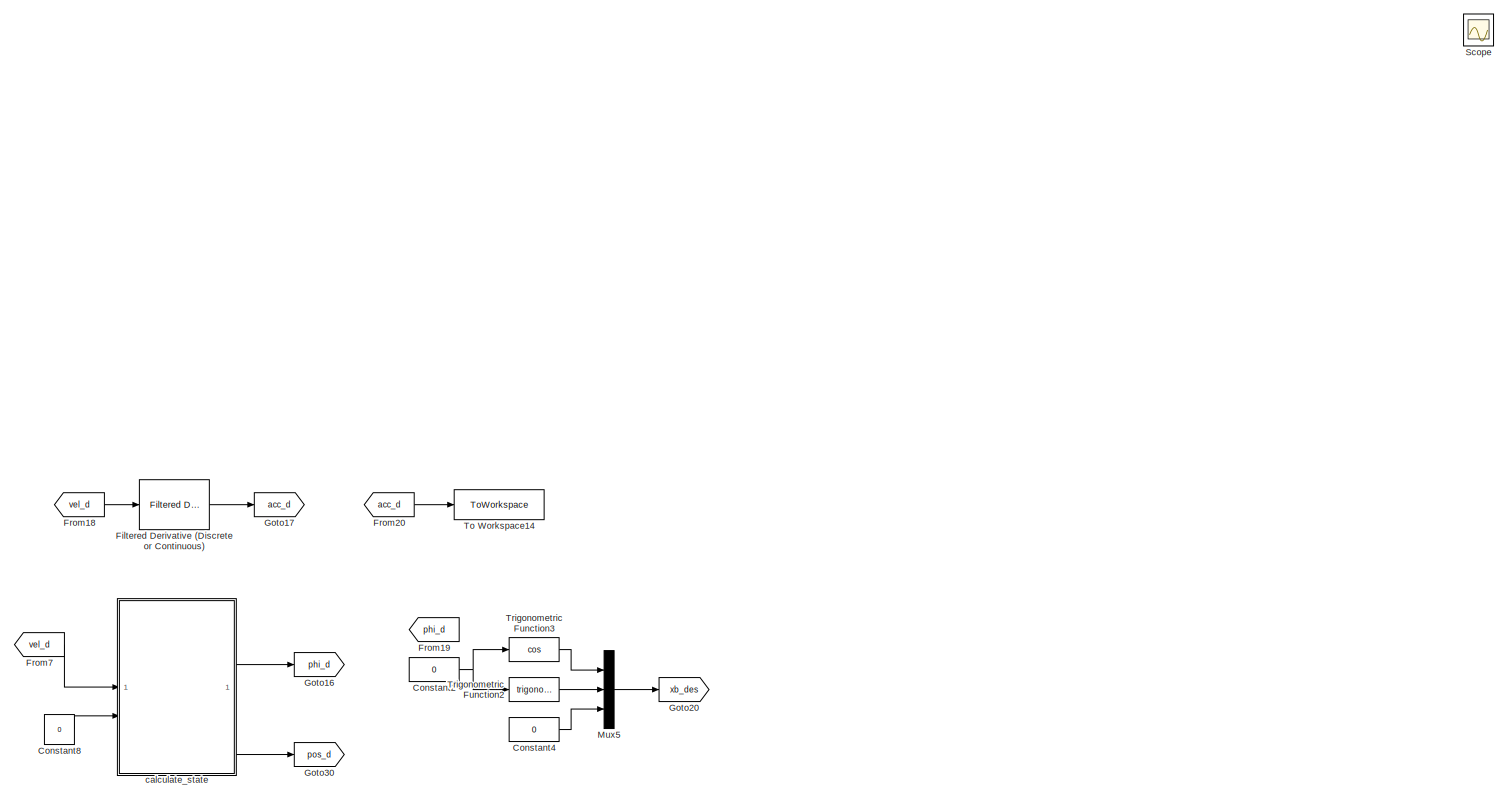
[diagram: root canvas - part 1/4, top right region]
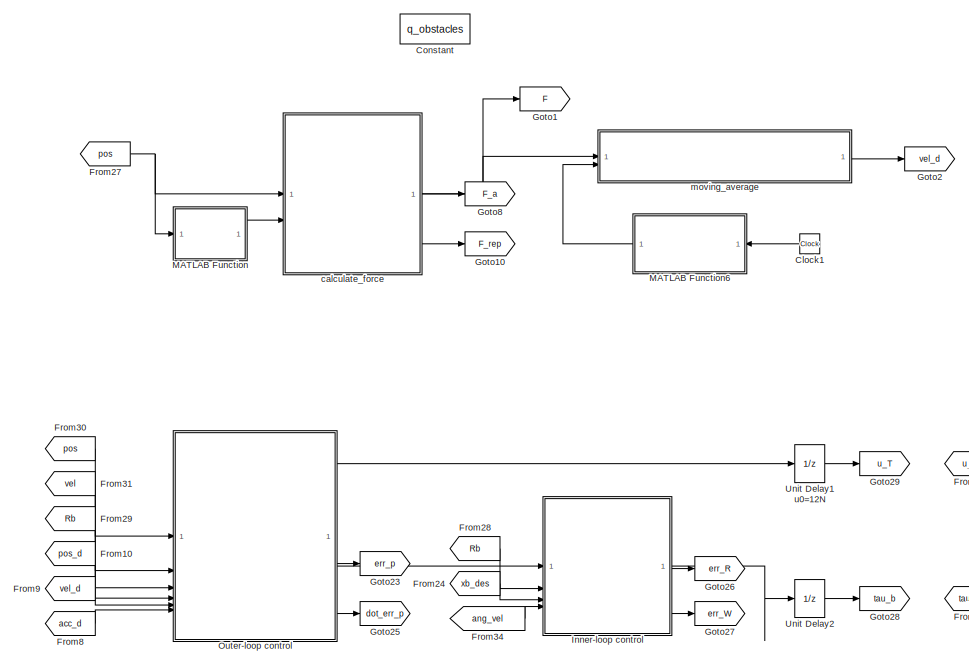
[diagram: root canvas - part 2/4, middle left region]
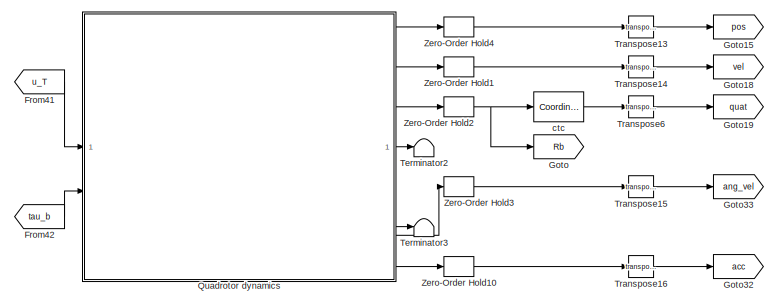
[diagram: root canvas - part 3/4, central region]
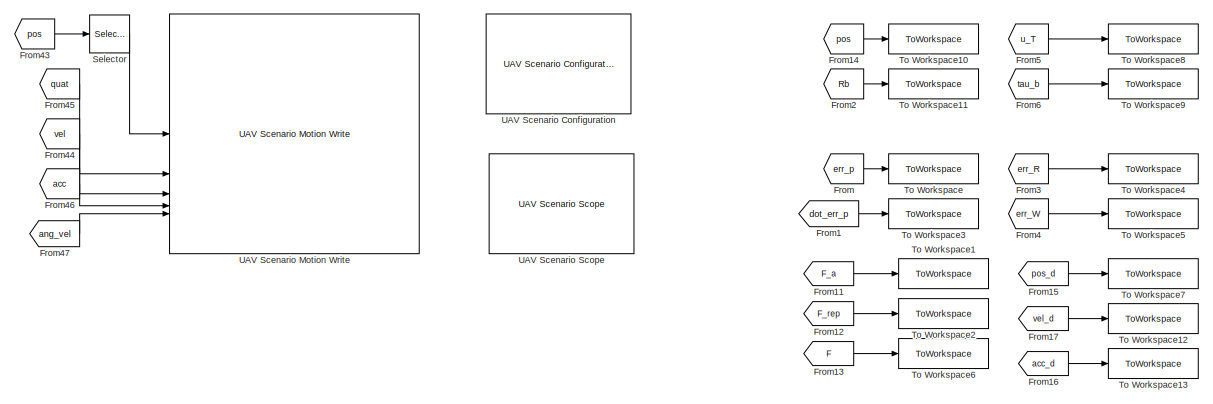
[diagram: root canvas - part 4/4, bottom left region]
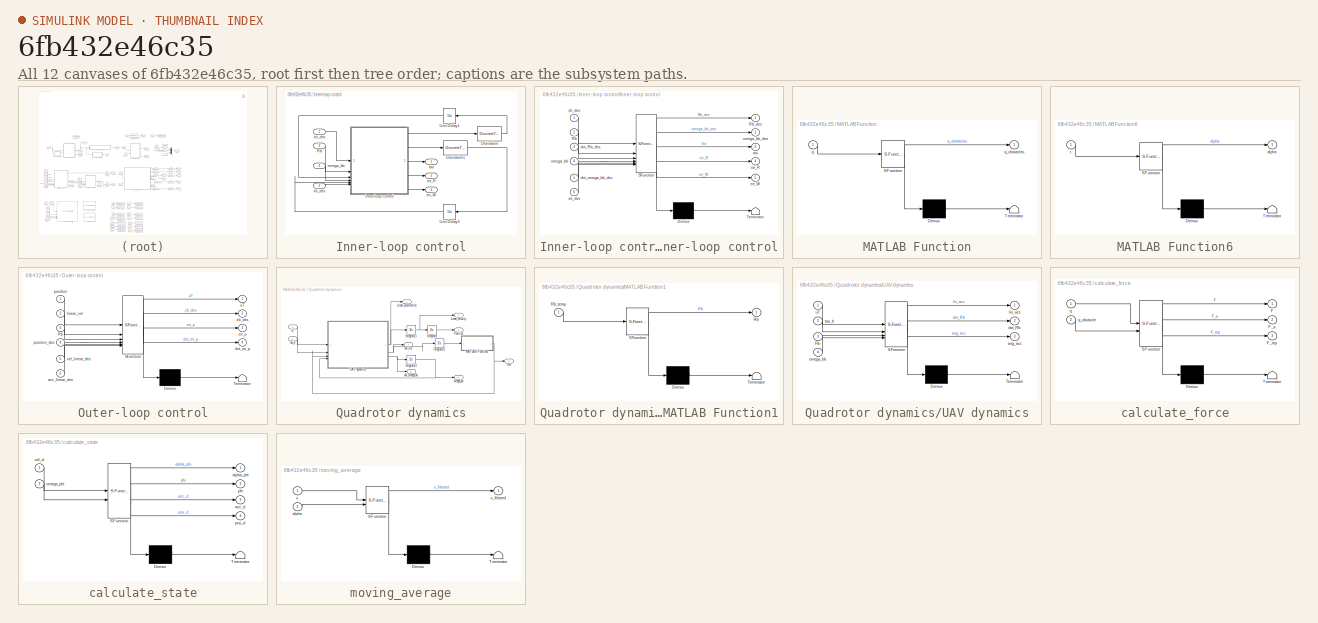
[diagram: thumbnail index - all 12 canvases of the model, root first then tree order]
MODEL slx_6fb432e46c35
KIND model
CONFIG AbsTol = auto
CONFIG EnableMultiTasking = off
CONFIG FixedStep = auto
CONFIG MaxStep = auto
CONFIG MinStep = auto
CONFIG RelTol = 1e-3
CONFIG SampleTimeConstraint = Unconstrained
CONFIG SolverName = VariableStepAuto
CONFIG StartTime = 0.0
CONFIG StopTime = 40
BLOCK [Clock] Clock1
  NameLocation = top
BLOCK [Constant] Constant
  Commented = on
  Value = q_obstacles
BLOCK [Constant] Constant2
  Value = 0
BLOCK [Constant] Constant4
  Value = 0
BLOCK [Constant] Constant8
  Value = 0
BLOCK [Reference] Filtered Derivative (Discrete or Continuous)  REF=eeGeneralControl/Filtered Derivative
(Discrete or Continuous)
  LibrarySourceBlock = ee_sl_lib/General Control/Filtered Derivative\n(Discrete or Continuous)
  SourceBlock = eeGeneralControl/Filtered Derivative\n(Discrete or Continuous)
  SourceType = Filtered Derivative (Discrete or Continuous)
BLOCK [From] From
  GotoTag = err_p
BLOCK [From] From1
  GotoTag = dot_err_p
BLOCK [From] From10
  GotoTag = pos_d
BLOCK [From] From11
  GotoTag = F_a
BLOCK [From] From12
  GotoTag = F_rep
BLOCK [From] From13
  GotoTag = F
BLOCK [From] From14
  GotoTag = pos
BLOCK [From] From15
  GotoTag = pos_d
BLOCK [From] From16
  Commented = on
  GotoTag = acc_d
BLOCK [From] From17
  GotoTag = vel_d
BLOCK [From] From18
  GotoTag = vel_d
BLOCK [From] From19
  GotoTag = phi_d
BLOCK [From] From2
  GotoTag = Rb
BLOCK [From] From20
  GotoTag = acc_d
BLOCK [From] From24
  GotoTag = xb_des
BLOCK [From] From27
  GotoTag = pos
BLOCK [From] From28
  GotoTag = Rb
BLOCK [From] From29
  GotoTag = Rb
BLOCK [From] From3
  GotoTag = err_R
BLOCK [From] From30
  GotoTag = pos
BLOCK [From] From31
  GotoTag = vel
BLOCK [From] From34
  GotoTag = ang_vel
BLOCK [From] From4
  GotoTag = err_W
BLOCK [From] From41
  GotoTag = u_T
BLOCK [From] From42
  GotoTag = tau_b
BLOCK [From] From43
  GotoTag = pos
BLOCK [From] From44
  GotoTag = vel
BLOCK [From] From45
  GotoTag = quat
BLOCK [From] From46
  GotoTag = acc
BLOCK [From] From47
  GotoTag = ang_vel
BLOCK [From] From5
  GotoTag = u_T
BLOCK [From] From6
  GotoTag = tau_b
BLOCK [From] From7
  GotoTag = vel_d
BLOCK [From] From8
  GotoTag = acc_d
BLOCK [From] From9
  GotoTag = vel_d
BLOCK [Goto] Goto
  GotoTag = Rb
BLOCK [Goto] Goto1
  GotoTag = F
BLOCK [Goto] Goto10
  GotoTag = F_rep
BLOCK [Goto] Goto15
  GotoTag = pos
BLOCK [Goto] Goto16
  GotoTag = phi_d
BLOCK [Goto] Goto17
  GotoTag = acc_d
BLOCK [Goto] Goto18
  GotoTag = vel
BLOCK [Goto] Goto19
  GotoTag = quat
BLOCK [Goto] Goto2
  GotoTag = vel_d
BLOCK [Goto] Goto20
  GotoTag = xb_des
BLOCK [Goto] Goto23
  GotoTag = err_p
BLOCK [Goto] Goto25
  GotoTag = dot_err_p
BLOCK [Goto] Goto26
  GotoTag = err_R
BLOCK [Goto] Goto27
  GotoTag = err_W
BLOCK [Goto] Goto28
  GotoTag = tau_b
BLOCK [Goto] Goto29
  GotoTag = u_T
BLOCK [Goto] Goto30
  GotoTag = pos_d
BLOCK [Goto] Goto32
  GotoTag = acc
BLOCK [Goto] Goto33
  GotoTag = ang_vel
BLOCK [Goto] Goto8
  GotoTag = F_a
BLOCK [SubSystem] Inner-loop control
BLOCK [DiscreteTransferFcn] Inner-loop control/Derivation
  Denominator = [Ts 0]
  InitialStates = [1 0 0;0 1 0;0 0 1]
  InputPortMap = u0
  Numerator = [1 -1]
  SampleTime = Ts
BLOCK [DiscreteTransferFcn] Inner-loop control/Derivation1
  Denominator = [Ts 0]
  InitialStates = [0 0 0]
  InputPortMap = u0
  Numerator = [1 -1]
  SampleTime = Ts
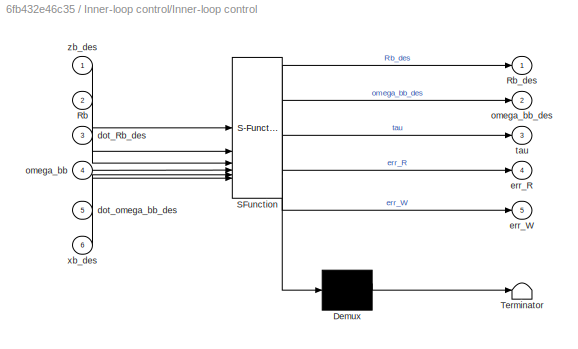
BLOCK [SubSystem] Inner-loop control/Inner-loop control
  ErrorFcn = Stateflow.Translate.translate
  PermitHierarchicalResolution = ExplicitOnly
  SFBlockType = MATLAB Function
  TreatAsAtomicUnit = on
BLOCK [Demux] Inner-loop control/Inner-loop control/ Demux 
  Outputs = 1
BLOCK [S-Function] Inner-loop control/Inner-loop control/ SFunction 
  EnableBusSupport = on
  FunctionName = sf_sfun
  Parameters = Ib,kr,kw
  PortCounts = [6 6]
  SFcnIsStateOwnerBlock = off
  SFunctionDeploymentMode = off
  Tag = Stateflow S-Function 4
BLOCK [Terminator] Inner-loop control/Inner-loop control/ Terminator 
BLOCK [Inport] Inner-loop control/Inner-loop control/Rb
  Port = 2
BLOCK [Outport] Inner-loop control/Inner-loop control/Rb_des
BLOCK [Inport] Inner-loop control/Inner-loop control/dot_Rb_des
  Port = 3
BLOCK [Inport] Inner-loop control/Inner-loop control/dot_omega_bb_des
  Port = 5
BLOCK [Outport] Inner-loop control/Inner-loop control/err_R
  Port = 4
BLOCK [Outport] Inner-loop control/Inner-loop control/err_W
  Port = 5
BLOCK [Inport] Inner-loop control/Inner-loop control/omega_bb
  Port = 4
BLOCK [Outport] Inner-loop control/Inner-loop control/omega_bb_des
  Port = 2
BLOCK [Outport] Inner-loop control/Inner-loop control/tau
  Port = 3
BLOCK [Inport] Inner-loop control/Inner-loop control/xb_des
  Port = 6
BLOCK [Inport] Inner-loop control/Inner-loop control/zb_des
BLOCK [Inport] Inner-loop control/Rb
  Port = 2
BLOCK [UnitDelay] Inner-loop control/Unit Delay1
  InitialCondition = eul2rotm(initori)
  SampleTime = Ts
BLOCK [UnitDelay] Inner-loop control/Unit Delay3
  InitialCondition = [0 0 0]
  SampleTime = Ts
BLOCK [Outport] Inner-loop control/err_R
  Port = 2
BLOCK [Outport] Inner-loop control/err_W
  Port = 3
BLOCK [Inport] Inner-loop control/omega_bb
  Port = 4
BLOCK [Outport] Inner-loop control/tau
BLOCK [Inport] Inner-loop control/xb_des
  Port = 3
BLOCK [Inport] Inner-loop control/zb_des
BLOCK [SubSystem] MATLAB Function
  ErrorFcn = Stateflow.Translate.translate
  LibrarySourceBlock = simulink/User-Defined\nFunctions/MATLAB Function
  PermitHierarchicalResolution = ExplicitOnly
  SFBlockType = MATLAB Function
  TreatAsAtomicUnit = on
BLOCK [Demux] MATLAB Function/ Demux 
  Outputs = 1
BLOCK [S-Function] MATLAB Function/ SFunction 
  EnableBusSupport = on
  FunctionName = sf_sfun
  Parameters = q_obs1,q_obs2
  PortCounts = [1 2]
  SFcnIsStateOwnerBlock = off
  SFunctionDeploymentMode = off
  Tag = Stateflow S-Function 2
BLOCK [Terminator] MATLAB Function/ Terminator 
BLOCK [Inport] MATLAB Function/q
BLOCK [Outport] MATLAB Function/q_obstacles
BLOCK [SubSystem] MATLAB Function6
  ErrorFcn = Stateflow.Translate.translate
  LibrarySourceBlock = simulink/User-Defined\nFunctions/MATLAB Function
  PermitHierarchicalResolution = ExplicitOnly
  SFBlockType = MATLAB Function
  TreatAsAtomicUnit = on
BLOCK [Demux] MATLAB Function6/ Demux 
  Outputs = 1
BLOCK [S-Function] MATLAB Function6/ SFunction 
  EnableBusSupport = on
  FunctionName = sf_sfun
  PortCounts = [1 2]
  SFcnIsStateOwnerBlock = off
  SFunctionDeploymentMode = off
  Tag = Stateflow S-Function 11
BLOCK [Terminator] MATLAB Function6/ Terminator 
BLOCK [Outport] MATLAB Function6/alpha
BLOCK [Inport] MATLAB Function6/t
BLOCK [Mux] Mux5
  DisplayOption = bar
  Inputs = 3
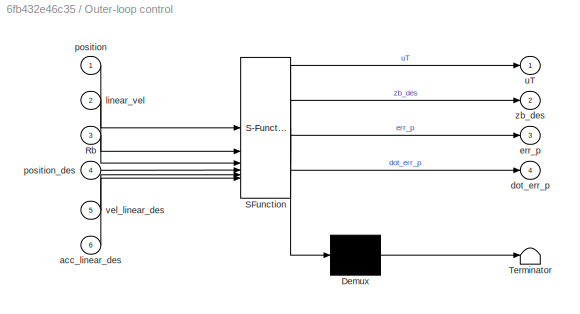
BLOCK [SubSystem] Outer-loop control
  ErrorFcn = Stateflow.Translate.translate
  PermitHierarchicalResolution = ExplicitOnly
  SFBlockType = MATLAB Function
  TreatAsAtomicUnit = on
BLOCK [Demux] Outer-loop control/ Demux 
  Outputs = 1
BLOCK [S-Function] Outer-loop control/ SFunction 
  EnableBusSupport = on
  FunctionName = sf_sfun
  Parameters = g,kp,kv,mass
  PortCounts = [6 5]
  SFcnIsStateOwnerBlock = off
  SFunctionDeploymentMode = off
  Tag = Stateflow S-Function 3
BLOCK [Terminator] Outer-loop control/ Terminator 
BLOCK [Inport] Outer-loop control/Rb
  Port = 3
BLOCK [Inport] Outer-loop control/acc_linear_des
  Port = 6
BLOCK [Outport] Outer-loop control/dot_err_p
  Port = 4
BLOCK [Outport] Outer-loop control/err_p
  Port = 3
BLOCK [Inport] Outer-loop control/linear_vel
  Port = 2
BLOCK [Inport] Outer-loop control/position
BLOCK [Inport] Outer-loop control/position_des
  Port = 4
BLOCK [Outport] Outer-loop control/uT
BLOCK [Inport] Outer-loop control/vel_linear_des
  Port = 5
BLOCK [Outport] Outer-loop control/zb_des
  Port = 2
BLOCK [SubSystem] Quadrotor dynamics
BLOCK [Integrator] Quadrotor dynamics/Integrator
  InitialCondition = initpos
BLOCK [Integrator] Quadrotor dynamics/Integrator1
  InitialCondition = initvel
BLOCK [Integrator] Quadrotor dynamics/Integrator2
  InitialCondition = eul2rotm(initori)
BLOCK [Integrator] Quadrotor dynamics/Integrator3
  InitialCondition = [0 0 0]
BLOCK [Outport] Quadrotor dynamics/Linear_acceleration
  Port = 7
BLOCK [Outport] Quadrotor dynamics/Linear_velocity
  Port = 2
BLOCK [SubSystem] Quadrotor dynamics/MATLAB Function1
  ErrorFcn = Stateflow.Translate.translate
  PermitHierarchicalResolution = ExplicitOnly
  SFBlockType = MATLAB Function
  TreatAsAtomicUnit = on
BLOCK [Demux] Quadrotor dynamics/MATLAB Function1/ Demux 
  Outputs = 1
BLOCK [S-Function] Quadrotor dynamics/MATLAB Function1/ SFunction 
  EnableBusSupport = on
  FunctionName = sf_sfun
  PortCounts = [1 2]
  SFcnIsStateOwnerBlock = off
  SFunctionDeploymentMode = off
  Tag = Stateflow S-Function 5
BLOCK [Terminator] Quadrotor dynamics/MATLAB Function1/ Terminator 
BLOCK [Outport] Quadrotor dynamics/MATLAB Function1/Rb
BLOCK [Inport] Quadrotor dynamics/MATLAB Function1/Rb_temp
BLOCK [Outport] Quadrotor dynamics/Position
BLOCK [Outport] Quadrotor dynamics/Rb
  Port = 3
BLOCK [SubSystem] Quadrotor dynamics/UAV dynamics
  ErrorFcn = Stateflow.Translate.translate
  PermitHierarchicalResolution = ExplicitOnly
  SFBlockType = MATLAB Function
  TreatAsAtomicUnit = on
BLOCK [Demux] Quadrotor dynamics/UAV dynamics/ Demux 
  Outputs = 1
BLOCK [S-Function] Quadrotor dynamics/UAV dynamics/ SFunction 
  EnableBusSupport = on
  FunctionName = sf_sfun
  Parameters = Ib,mass
  PortCounts = [4 4]
  SFcnIsStateOwnerBlock = off
  SFunctionDeploymentMode = off
  Tag = Stateflow S-Function 6
BLOCK [Terminator] Quadrotor dynamics/UAV dynamics/ Terminator 
BLOCK [Inport] Quadrotor dynamics/UAV dynamics/Rb
  Port = 3
BLOCK [Outport] Quadrotor dynamics/UAV dynamics/ang_acc
  Port = 3
BLOCK [Outport] Quadrotor dynamics/UAV dynamics/dot_Rb
  Port = 2
BLOCK [Outport] Quadrotor dynamics/UAV dynamics/lin_acc
BLOCK [Inport] Quadrotor dynamics/UAV dynamics/omega_bb
  Port = 4
BLOCK [Inport] Quadrotor dynamics/UAV dynamics/tau_b
  Port = 2
BLOCK [Inport] Quadrotor dynamics/UAV dynamics/uT
BLOCK [Outport] Quadrotor dynamics/dot_Rb
  Port = 4
BLOCK [Outport] Quadrotor dynamics/dot_omega_bb
  Port = 6
BLOCK [Outport] Quadrotor dynamics/omega_bb
  Port = 5
BLOCK [Inport] Quadrotor dynamics/tau_b
  Port = 2
BLOCK [Inport] Quadrotor dynamics/uT
BLOCK [Scope] Scope
  Floating = off
  IOType = viewer
  NumInputPorts = 1
  ScopeSpecificationString = Simulink.scopes.TimeScopeBlockCfg('CurrentConfiguration', extmgr.ConfigurationSet(extmgr.Configuration('Core','General UI',true),extmgr.Configuration('Core','Source UI',true),extmgr.Configuration('Sources','WiredSimulink',true,'DataLoggingVariableName','ScopeData1'),extmgr.Configuration('Visuals','Time Domain',true,'SerializedDisplays',{struct('MinYLimReal','-62.04519','MaxYLimReal','73.56058','YL...<+1418ch>
BLOCK [Selector] Selector
  IndexOptions = Index vector (dialog)
  Indices = [2 1 3]
  InputPortWidth = 3
  OutputSizes = 1
BLOCK [Terminator] Terminator2
BLOCK [Terminator] Terminator3
BLOCK [ToWorkspace] To Workspace
  FixptAsFi = on
  MaxDataPoints = inf
  SampleTime = -1
  SaveFormat = Timeseries
  VariableName = err_p
BLOCK [ToWorkspace] To Workspace1
  FixptAsFi = on
  MaxDataPoints = inf
  SampleTime = -1
  Save2DSignal = 2-D array (concatenate along first dimension)
  VariableName = F_a
BLOCK [ToWorkspace] To Workspace10
  FixptAsFi = on
  MaxDataPoints = inf
  SampleTime = -1
  Save2DSignal = 2-D array (concatenate along first dimension)
  VariableName = pos
BLOCK [ToWorkspace] To Workspace11
  FixptAsFi = on
  MaxDataPoints = inf
  SampleTime = -1
  SaveFormat = Timeseries
  VariableName = rot
BLOCK [ToWorkspace] To Workspace12
  FixptAsFi = on
  MaxDataPoints = inf
  SampleTime = -1
  Save2DSignal = 2-D array (concatenate along first dimension)
  VariableName = vel_d
BLOCK [ToWorkspace] To Workspace13
  Commented = on
  FixptAsFi = on
  MaxDataPoints = inf
  SampleTime = -1
  VariableName = acc_d
BLOCK [ToWorkspace] To Workspace14
  FixptAsFi = on
  MaxDataPoints = inf
  SampleTime = -1
  Save2DSignal = 2-D array (concatenate along first dimension)
  VariableName = acc_d
BLOCK [ToWorkspace] To Workspace2
  FixptAsFi = on
  MaxDataPoints = inf
  SampleTime = -1
  Save2DSignal = 2-D array (concatenate along first dimension)
  VariableName = F_rep
BLOCK [ToWorkspace] To Workspace3
  FixptAsFi = on
  MaxDataPoints = inf
  SampleTime = -1
  SaveFormat = Timeseries
  VariableName = dot_err_p
BLOCK [ToWorkspace] To Workspace4
  FixptAsFi = on
  MaxDataPoints = inf
  SampleTime = -1
  SaveFormat = Timeseries
  VariableName = err_R
BLOCK [ToWorkspace] To Workspace5
  FixptAsFi = on
  MaxDataPoints = inf
  SampleTime = -1
  SaveFormat = Timeseries
  VariableName = err_W
BLOCK [ToWorkspace] To Workspace6
  FixptAsFi = on
  MaxDataPoints = inf
  SampleTime = -1
  Save2DSignal = 2-D array (concatenate along first dimension)
  VariableName = F
BLOCK [ToWorkspace] To Workspace7
  FixptAsFi = on
  MaxDataPoints = inf
  SampleTime = -1
  VariableName = pos_d
BLOCK [ToWorkspace] To Workspace8
  FixptAsFi = on
  MaxDataPoints = inf
  SampleTime = -1
  SaveFormat = Timeseries
  VariableName = uT
BLOCK [ToWorkspace] To Workspace9
  FixptAsFi = on
  MaxDataPoints = inf
  SampleTime = -1
  SaveFormat = Timeseries
  VariableName = tau_b
BLOCK [Math] Transpose13
  Operator = transpose
BLOCK [Math] Transpose14
  Operator = transpose
BLOCK [Math] Transpose15
  Operator = transpose
BLOCK [Math] Transpose16
  Operator = transpose
BLOCK [Math] Transpose6
  Operator = transpose
BLOCK [Trigonometry] Trigonometric Function2
BLOCK [Trigonometry] Trigonometric Function3
  Operator = cos
BLOCK [Reference] UAV Scenario Configuration  REF=uavsimlib/UAV Scenario Configuration
  Priority = -1
  SourceBlock = uavsimlib/UAV Scenario Configuration
  SourceType = UAV Scenario Configuration
BLOCK [Reference] UAV Scenario Motion Write  REF=uavsimlib/UAV Scenario Motion Write
  Priority = 0
  SourceBlock = uavsimlib/UAV Scenario Motion Write
  SourceType = UAV Scenario Motion Write
BLOCK [Reference] UAV Scenario Scope  REF=uavsimlib/UAV Scenario Scope
  Priority = 1
  SourceBlock = uavsimlib/UAV Scenario Scope
  SourceType = UAV Scenario Scope
BLOCK [UnitDelay] Unit Delay1 u0=12N
  InitialCondition = uT_0
  SampleTime = Ts
BLOCK [UnitDelay] Unit Delay2
  InitialCondition = [0 0 0]
  SampleTime = Ts
BLOCK [ZeroOrderHold] Zero-Order Hold1
  SampleTime = Ts
BLOCK [ZeroOrderHold] Zero-Order Hold10
  SampleTime = Ts
BLOCK [ZeroOrderHold] Zero-Order Hold2
  SampleTime = Ts
BLOCK [ZeroOrderHold] Zero-Order Hold3
  SampleTime = Ts
BLOCK [ZeroOrderHold] Zero-Order Hold4
  SampleTime = Ts
BLOCK [SubSystem] calculate_force
  ErrorFcn = Stateflow.Translate.translate
  LibrarySourceBlock = simulink/User-Defined\nFunctions/MATLAB Function
  PermitHierarchicalResolution = ExplicitOnly
  SFBlockType = MATLAB Function
  TreatAsAtomicUnit = on
BLOCK [Demux] calculate_force/ Demux 
  Outputs = 1
BLOCK [S-Function] calculate_force/ SFunction 
  EnableBusSupport = on
  FunctionName = sf_sfun
  Parameters = d0,k_att,k_rep,q_goal
  PortCounts = [2 4]
  SFcnIsStateOwnerBlock = off
  SFunctionDeploymentMode = off
  Tag = Stateflow S-Function 10
BLOCK [Terminator] calculate_force/ Terminator 
BLOCK [Outport] calculate_force/F
BLOCK [Outport] calculate_force/F_a
  Port = 2
BLOCK [Outport] calculate_force/F_rep
  Port = 3
BLOCK [Inport] calculate_force/q
BLOCK [Inport] calculate_force/q_obstacle
  Port = 2
BLOCK [SubSystem] calculate_state
  ErrorFcn = Stateflow.Translate.translate
  LibrarySourceBlock = simulink/User-Defined\nFunctions/MATLAB Function
  PermitHierarchicalResolution = ExplicitOnly
  SFBlockType = MATLAB Function
  TreatAsAtomicUnit = on
BLOCK [Demux] calculate_state/ Demux 
  Outputs = 1
BLOCK [S-Function] calculate_state/ SFunction 
  EnableBusSupport = on
  FunctionName = sf_sfun
  Parameters = Ts,initpos,initvel
  PortCounts = [2 5]
  SFcnIsStateOwnerBlock = off
  SFunctionDeploymentMode = off
  Tag = Stateflow S-Function 12
BLOCK [Terminator] calculate_state/ Terminator 
BLOCK [Outport] calculate_state/acc_d
  Port = 3
BLOCK [Outport] calculate_state/alpha_phi
BLOCK [Inport] calculate_state/omega_phi
  Port = 2
BLOCK [Outport] calculate_state/phi
  Port = 2
BLOCK [Outport] calculate_state/pos_d
  Port = 4
BLOCK [Inport] calculate_state/vel_d
BLOCK [Reference] ctc  REF=robotcorelib/Coordinate Transformation Conversion
  SourceBlock = robotcorelib/Coordinate Transformation Conversion
  SourceType = robotics.slcore.internal.block.CoordinateTransformationConversion
BLOCK [SubSystem] moving_average
  ErrorFcn = Stateflow.Translate.translate
  LibrarySourceBlock = simulink/User-Defined\nFunctions/MATLAB Function
  PermitHierarchicalResolution = ExplicitOnly
  SFBlockType = MATLAB Function
  TreatAsAtomicUnit = on
BLOCK [Demux] moving_average/ Demux 
  Outputs = 1
BLOCK [S-Function] moving_average/ SFunction 
  EnableBusSupport = on
  FunctionName = sf_sfun
  PortCounts = [2 2]
  SFcnIsStateOwnerBlock = off
  SFunctionDeploymentMode = off
  Tag = Stateflow S-Function 9
BLOCK [Terminator] moving_average/ Terminator 
BLOCK [Inport] moving_average/alpha
  Port = 2
BLOCK [Inport] moving_average/x
BLOCK [Outport] moving_average/x_filtered
LINE Clock1:1 -> MATLAB Function6:1
NET Constant2:1 -> Trigonometric Function2:1, Trigonometric Function3:1
LINE Constant4:1 -> Mux5:3
LINE Constant8:1 -> calculate_state:2
LINE Filtered Derivative (Discrete or Continuous):1 -> Goto17:1
LINE From10:1 -> Outer-loop control:4
LINE From11:1 -> To Workspace1:1
LINE From12:1 -> To Workspace2:1
LINE From13:1 -> To Workspace6:1
LINE From14:1 -> To Workspace10:1
LINE From15:1 -> To Workspace7:1
LINE From16:1 -> To Workspace13:1
LINE From17:1 -> To Workspace12:1
LINE From18:1 -> Filtered Derivative (Discrete or Continuous):1
LINE From1:1 -> To Workspace3:1
LINE From20:1 -> To Workspace14:1
LINE From24:1 -> Inner-loop control:3
NET From27:1 -> MATLAB Function:1, calculate_force:1
LINE From28:1 -> Inner-loop control:2
LINE From29:1 -> Outer-loop control:3
LINE From2:1 -> To Workspace11:1
LINE From30:1 -> Outer-loop control:1
LINE From31:1 -> Outer-loop control:2
LINE From34:1 -> Inner-loop control:4
LINE From3:1 -> To Workspace4:1
LINE From41:1 -> Quadrotor dynamics:1
LINE From42:1 -> Quadrotor dynamics:2
LINE From43:1 -> Selector:1
LINE From44:1 -> UAV Scenario Motion Write:3
LINE From45:1 -> UAV Scenario Motion Write:2
LINE From46:1 -> UAV Scenario Motion Write:4
LINE From47:1 -> UAV Scenario Motion Write:5
LINE From4:1 -> To Workspace5:1
LINE From5:1 -> To Workspace8:1
LINE From6:1 -> To Workspace9:1
LINE From7:1 -> calculate_state:1
LINE From8:1 -> Outer-loop control:6
LINE From9:1 -> Outer-loop control:5
LINE From:1 -> To Workspace:1
LINE Inner-loop control/Derivation1:1 -> Inner-loop control/Unit Delay3:1
LINE Inner-loop control/Derivation:1 -> Inner-loop control/Unit Delay1:1
LINE Inner-loop control/Inner-loop control:1 -> Inner-loop control/Derivation:1
LINE Inner-loop control/Inner-loop control:2 -> Inner-loop control/Derivation1:1
LINE Inner-loop control/Inner-loop control:3 -> Inner-loop control/tau:1
LINE Inner-loop control/Inner-loop control:4 -> Inner-loop control/err_R:1
LINE Inner-loop control/Inner-loop control:5 -> Inner-loop control/err_W:1
LINE Inner-loop control/Rb:1 -> Inner-loop control/Inner-loop control:2
LINE Inner-loop control/Unit Delay1:1 -> Inner-loop control/Inner-loop control:3
LINE Inner-loop control/Unit Delay3:1 -> Inner-loop control/Inner-loop control:5
LINE Inner-loop control/omega_bb:1 -> Inner-loop control/Inner-loop control:4
LINE Inner-loop control/xb_des:1 -> Inner-loop control/Inner-loop control:6
LINE Inner-loop control/zb_des:1 -> Inner-loop control/Inner-loop control:1
LINE Inner-loop control:1 -> Unit Delay2:1
LINE Inner-loop control:2 -> Goto26:1
LINE Inner-loop control:3 -> Goto27:1
LINE MATLAB Function6:1 -> moving_average:2
LINE MATLAB Function:1 -> calculate_force:2
LINE Mux5:1 -> Goto20:1
LINE Outer-loop control:1 -> Unit Delay1 u0=12N:1
LINE Outer-loop control:2 -> Inner-loop control:1
LINE Outer-loop control:3 -> Goto23:1
LINE Outer-loop control:4 -> Goto25:1
NET Quadrotor dynamics/Integrator1:1 -> Quadrotor dynamics/Integrator:1, Quadrotor dynamics/Linear_velocity:1
LINE Quadrotor dynamics/Integrator2:1 -> Quadrotor dynamics/MATLAB Function1:1
NET Quadrotor dynamics/Integrator3:1 -> Quadrotor dynamics/UAV dynamics:4, Quadrotor dynamics/omega_bb:1
LINE Quadrotor dynamics/Integrator:1 -> Quadrotor dynamics/Position:1
NET Quadrotor dynamics/MATLAB Function1:1 -> Quadrotor dynamics/Rb:1, Quadrotor dynamics/UAV dynamics:3
NET Quadrotor dynamics/UAV dynamics:1 -> Quadrotor dynamics/Integrator1:1, Quadrotor dynamics/Linear_acceleration:1
NET Quadrotor dynamics/UAV dynamics:2 -> Quadrotor dynamics/Integrator2:1, Quadrotor dynamics/dot_Rb:1
NET Quadrotor dynamics/UAV dynamics:3 -> Quadrotor dynamics/Integrator3:1, Quadrotor dynamics/dot_omega_bb:1
LINE Quadrotor dynamics/tau_b:1 -> Quadrotor dynamics/UAV dynamics:2
LINE Quadrotor dynamics/uT:1 -> Quadrotor dynamics/UAV dynamics:1
LINE Quadrotor dynamics:1 -> Zero-Order Hold4:1
LINE Quadrotor dynamics:2 -> Zero-Order Hold1:1
LINE Quadrotor dynamics:3 -> Zero-Order Hold2:1
LINE Quadrotor dynamics:4 -> Terminator2:1
LINE Quadrotor dynamics:5 -> Zero-Order Hold3:1
LINE Quadrotor dynamics:6 -> Terminator3:1
LINE Quadrotor dynamics:7 -> Zero-Order Hold10:1
LINE Selector:1 -> UAV Scenario Motion Write:1
LINE Transpose13:1 -> Goto15:1
LINE Transpose14:1 -> Goto18:1
LINE Transpose15:1 -> Goto33:1
LINE Transpose16:1 -> Goto32:1
LINE Transpose6:1 -> Goto19:1
LINE Trigonometric Function2:1 -> Mux5:2
LINE Trigonometric Function3:1 -> Mux5:1
LINE Unit Delay1 u0=12N:1 -> Goto29:1
LINE Unit Delay2:1 -> Goto28:1
LINE Zero-Order Hold10:1 -> Transpose16:1
LINE Zero-Order Hold1:1 -> Transpose14:1
NET Zero-Order Hold2:1 -> Goto:1, ctc:1
LINE Zero-Order Hold3:1 -> Transpose15:1
LINE Zero-Order Hold4:1 -> Transpose13:1
NET calculate_force:1 -> Goto1:1, moving_average:1
LINE calculate_force:2 -> Goto8:1
LINE calculate_force:3 -> Goto10:1
LINE calculate_state:2 -> Goto16:1
LINE calculate_state:4 -> Goto30:1
LINE ctc:1 -> Transpose6:1
LINE moving_average:1 -> Goto2:1
note: NET lines group one-source signal fan-out (src -> all destinations, sorted); 1:1 wires keep LINE
CHART calculate_force states=1 transitions=1
  STATE_LABEL 'eML_blk_kernel()'
  STATE_LABEL 'SCRIPT:\nfunction [F, F_a, F_rep]  = calculate_force(q, q_obstacle, q_goal, k_att, k_rep, d0)\n\ne_pos = q_goal-q;\n\nif(norm(e_pos)<1)\n    F_a = k_att * e_pos;\nelse\n    F_a = k_att * e_pos/norm(e_pos);\n\nend\ngamma = 3;\n\n\n% Inizializza la forza repulsiva\nF_rep = zeros(1, 3);\n\n%Calcola la forza repulsiva per ciascun ostacolo\nfor i = 1:size(q_obstacle, 1)\n    q_obs = q_obstacle(i,:);\n    dist = norm(q - q...<+232ch>'
CHART MATLAB Function6 states=1 transitions=1
  STATE_LABEL 'eML_blk_kernel()'
  STATE_LABEL "SCRIPT:\nfunction alpha  = calculate_alpha(t)\n    % Calcola il valore di alpha in base all'istante temporale t\n    \n    % Define initial and final alpha values\n    alpha_initial = 0.0000005;\n    alpha_final = 0.5;\n    alpha_final = 0.005;\n    \n    % Define the time duration over which alpha should reach final value\n\n    time_to_increase = 10;  % Increase alpha over 10 seconds\n    alpha = alpha_init...<+448ch>"
CHART calculate_state states=1 transitions=1
  STATE_LABEL 'eML_blk_kernel()'
  STATE_LABEL 'SCRIPT:\nfunction [alpha_phi, phi, acc_d, pos_d] = calculate_state(vel_d, omega_phi, initpos, initvel, Ts)\n    % Calcola le posizioni e le accelerazioni a partire dalle velocità\n    % Inizializza le variabili persistenti\n    persistent x_prev y_prev z_prev phi_prev\n    persistent v_x_prev v_y_prev v_z_prev omega_phi_prev\n\n    dt = Ts;\n\n    % Se è la prima chiamata, inizializza le variabili persiste...<+1033ch>'
CHART MATLAB Function states=1 transitions=1
  STATE_LABEL 'eML_blk_kernel()'
  STATE_LABEL "SCRIPT:\nfunction q_obstacles = fcn(q, q_obs1, q_obs2)\ndistanza=[];\nq_obstacles=[zeros(3);zeros(3)];\nmin=1000;\nindex=0;\nfor i=1:size(q_obs1,1)\n    distanza = [distanza norm(q - q_obs1(i,:))];\n    if(distanza(i) < min)\n        min=distanza(i);\n        index=i;\n    end\nend\n%[M,I]= min(distanza,[],'all');\nq_obs = q_obs1(index,:);\n\ndistanza2=[];\nmin=1000;\nindex=0;\nfor k=1:size(q_obs2,1)\n    distanza2 =...<+216ch>"
CHART Outer-loop control states=1 transitions=1
  STATE_LABEL 'eML_blk_kernel()'
  STATE_LABEL 'SCRIPT:\nfunction [uT, zb_des, err_p, dot_err_p] = fcn(position, linear_vel, Rb, mass, ...\n    position_des, vel_linear_des, acc_linear_des, kp, kv, g)\n\n%% WRITE HERE THE OUTER-LOOP CONTROL\n% position: linear position measure\n% linear_vel: linear velocity measure\n% Rb: current rotation matrix\n% mass: mass of the UAV\n% positon_des: desired linear position from the planner\n% vel_linear_des: desired l...<+563ch>'
CHART Inner-loop control/Inner-loop control states=1 transitions=1
  STATE_LABEL 'eML_blk_kernel()'
  STATE_LABEL 'SCRIPT:\nfunction [Rb_des,omega_bb_des,tau,err_R,err_W] = fcn(zb_des,Rb,dot_Rb_des,omega_bb,dot_omega_bb_des,xb_des,Ib, kw, kr)\n\n%% WRITE HERE THE INNER-LOOP CONTROL\n% zb_des: desired z-axis of the body frame\n% Rb: current rotation matrix\n% dot_Rb_des: time-derivative of the desired rotation matrix\n% omega_bb: current angular velocity expressed in the body frame\n% dot_omega_bb_des: desired angular ...<+1034ch>'
CHART Quadrotor dynamics/MATLAB Function1 states=1 transitions=1
  STATE_LABEL 'eML_blk_kernel()'
  STATE_LABEL "SCRIPT:\nfunction Rb = fcn(Rb_temp)\n    [U,S,V] = svd(Rb_temp);\n    sigma = det(U*V');\n    S_ = diag([1 1 sigma]);\n\n    Rb = U*S_*V';\nend\n"
CHART Quadrotor dynamics/UAV dynamics states=1 transitions=1
  STATE_LABEL 'eML_blk_kernel()'
  STATE_LABEL "SCRIPT:\nfunction [lin_acc, dot_Rb, ang_acc] = fcn(uT,tau_b,Rb,omega_bb,mass, Ib)\n\nlin_acc = 9.81*[0 0 1]'-(uT/mass)*Rb*[0 0 1]';\ndot_Rb = Rb*skew(omega_bb);\nang_acc = inv(Ib)*(-skew(omega_bb)*Ib*omega_bb + tau_b);\n\nend\n\nfunction S = skew(v)\nif(numel(v)~= 1)\nS= [0 -v(3) v(2); \n    v(3) 0 -v(1);\n    -v(2) v(1) 0];\nelse\nS= zeros(3);\nend\nend"
CHART moving_average states=1 transitions=1
  STATE_LABEL 'eML_blk_kernel()'
  STATE_LABEL "SCRIPT:\nfunction x_filtered = exponential_moving_average_vector(x, alpha)\n\n    % Verifica che l'input x sia un vettore colonna 3x1\n    if ~isequal(size(x), [1, 3])\n        error('L''input x deve essere un vettore colonna 3x1.');\n    end\n    \n    % Inizializza la variabile persistente\n    persistent x_filtered_prev\n    \n    % Se è la prima chiamata, inizializza la variabile persistente\n    if isemp...<+285ch>"
CHART  states=0 transitions=0
CHART  states=0 transitions=0
CHART  states=0 transitions=0
CHART  states=0 transitions=0
CHART  states=0 transitions=0
CHART  states=0 transitions=0
CHART  states=0 transitions=0
CHART  states=0 transitions=0
CHART  states=0 transitions=0
